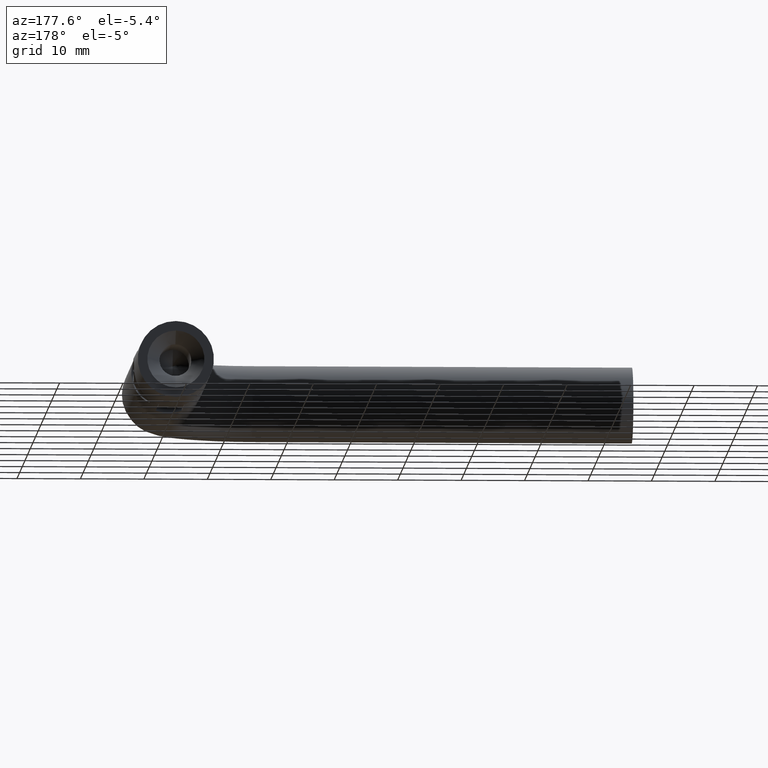
[diagram: clean part render]
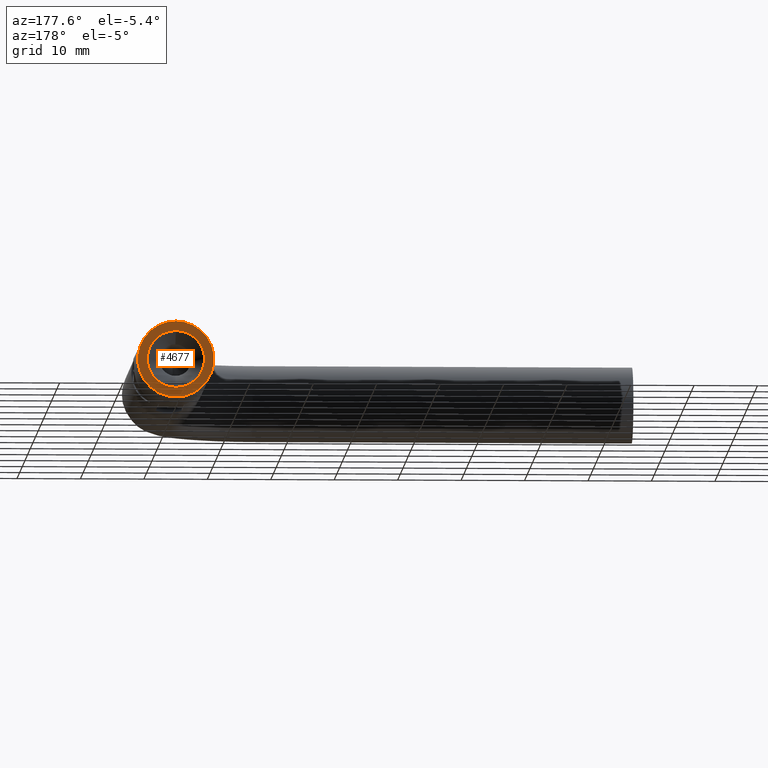
[diagram: same view with one face highlighted and labeled with its STEP entity id]
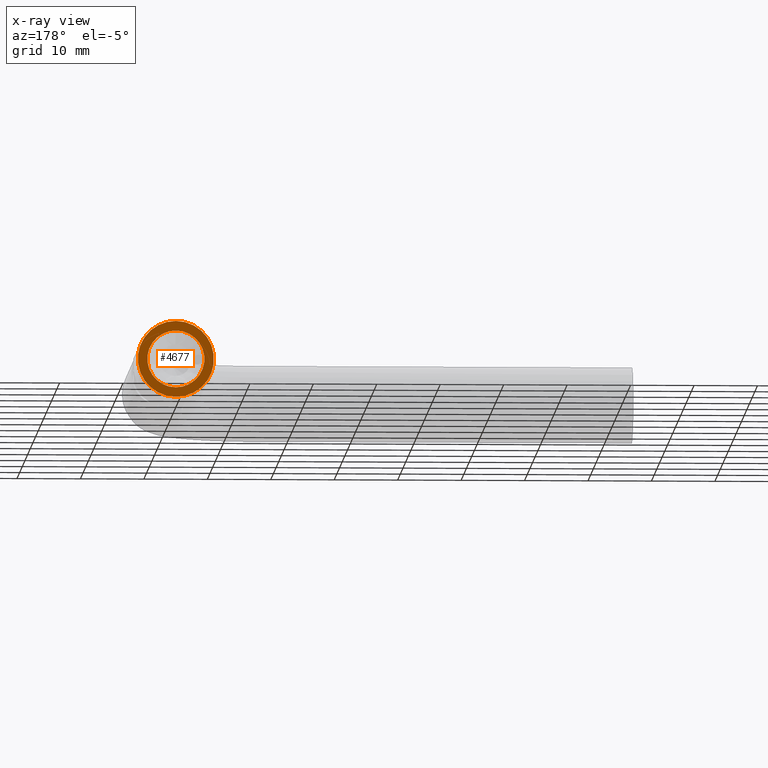
[diagram: x-ray of the same camera — body ghosted, the highlighted face saturated]
A machine part, auxiliary view. The second image highlights one B-rep face of the part: STEP entity #4677.
The next image is the same camera in x-ray: the body ghosted, the highlighted face saturated — about 0% of this face is hidden behind the body in this view.
In plain terms, the highlighted planar face has unit normal (0, 1, 0).
Its self-contained STEP definition (entity closure, byte-faithful):
#646 = DIRECTION ( 'NONE',  ( 0.000000000000000000, 1.000000000000000000, 0.000000000000000000 ) ) ;
#898 = DIRECTION ( 'NONE',  ( -0.000000000000000000, 1.000000000000000000, -0.000000000000000000 ) ) ;
#1510 = EDGE_CURVE ( 'NONE', #6888, #1988, #9349, .T. ) ;
#1697 = DIRECTION ( 'NONE',  ( 0.000000000000000000, -0.000000000000000000, 1.000000000000000000 ) ) ;
#1702 = AXIS2_PLACEMENT_3D ( 'NONE', #10224, #13731, #1697 ) ;
#1732 = AXIS2_PLACEMENT_3D ( 'NONE', #11570, #7991, #1893 ) ;
#1893 = DIRECTION ( 'NONE',  ( 0.000000000000000000, 0.000000000000000000, 1.000000000000000000 ) ) ;
#1988 = VERTEX_POINT ( 'NONE', #14956 ) ;
#2028 = FACE_OUTER_BOUND ( 'NONE', #14743, .T. ) ;
#2718 = VERTEX_POINT ( 'NONE', #4234 ) ;
#3001 = CARTESIAN_POINT ( 'NONE',  ( 0.000000000000000000, 12.86999999999999922, 0.000000000000000000 ) ) ;
#3105 = DIRECTION ( 'NONE',  ( 0.000000000000000000, 0.000000000000000000, 1.000000000000000000 ) ) ;
#3123 = CARTESIAN_POINT ( 'NONE',  ( 0.000000000000000000, 12.86999999999999922, 0.000000000000000000 ) ) ;
#4234 = CARTESIAN_POINT ( 'NONE',  ( 5.510910596163089556E-16, 12.86999999999999922, -4.500000000000000888 ) ) ;
#4266 = DIRECTION ( 'NONE',  ( 0.000000000000000000, 0.000000000000000000, 1.000000000000000000 ) ) ;
#4464 = CARTESIAN_POINT ( 'NONE',  ( 0.000000000000000000, 12.86999999999999922, 0.000000000000000000 ) ) ;
#4677 = ADVANCED_FACE ( 'NONE', ( #6159, #2028 ), #12565, .T. ) ;
#5160 = AXIS2_PLACEMENT_3D ( 'NONE', #3001, #11372, #3105 ) ;
#5522 = CIRCLE ( 'NONE', #14129, 4.500000000000000888 ) ;
#5795 = EDGE_CURVE ( 'NONE', #2718, #14023, #11429, .T. ) ;
#6159 = FACE_BOUND ( 'NONE', #7781, .T. ) ;
#6888 = VERTEX_POINT ( 'NONE', #13544 ) ;
#7138 = CARTESIAN_POINT ( 'NONE',  ( 0.000000000000000000, 12.86999999999999922, 4.500000000000000888 ) ) ;
#7781 = EDGE_LOOP ( 'NONE', ( #11904, #10239 ) ) ;
#7991 = DIRECTION ( 'NONE',  ( 0.000000000000000000, 1.000000000000000000, 0.000000000000000000 ) ) ;
#9349 = CIRCLE ( 'NONE', #14258, 6.000000000000000888 ) ;
#9614 = EDGE_CURVE ( 'NONE', #1988, #6888, #12561, .T. ) ;
#10224 = CARTESIAN_POINT ( 'NONE',  ( 0.000000000000000000, 12.86999999999999922, 0.000000000000000000 ) ) ;
#10239 = ORIENTED_EDGE ( 'NONE', *, *, #5795, .F. ) ;
#10601 = DIRECTION ( 'NONE',  ( 0.000000000000000000, 0.000000000000000000, 1.000000000000000000 ) ) ;
#11372 = DIRECTION ( 'NONE',  ( -0.000000000000000000, 1.000000000000000000, -0.000000000000000000 ) ) ;
#11429 = CIRCLE ( 'NONE', #5160, 4.500000000000000888 ) ;
#11570 = CARTESIAN_POINT ( 'NONE',  ( 0.000000000000000000, 12.86999999999999922, 0.000000000000000000 ) ) ;
#11904 = ORIENTED_EDGE ( 'NONE', *, *, #12491, .F. ) ;
#12491 = EDGE_CURVE ( 'NONE', #14023, #2718, #5522, .T. ) ;
#12561 = CIRCLE ( 'NONE', #1732, 6.000000000000000888 ) ;
#12565 = PLANE ( 'NONE',  #1702 ) ;
#12574 = ORIENTED_EDGE ( 'NONE', *, *, #9614, .T. ) ;
#13544 = CARTESIAN_POINT ( 'NONE',  ( 7.347880794884120722E-16, 12.86999999999999922, 6.000000000000000888 ) ) ;
#13731 = DIRECTION ( 'NONE',  ( 0.000000000000000000, 1.000000000000000000, 0.000000000000000000 ) ) ;
#14023 = VERTEX_POINT ( 'NONE', #7138 ) ;
#14129 = AXIS2_PLACEMENT_3D ( 'NONE', #4464, #898, #10601 ) ;
#14258 = AXIS2_PLACEMENT_3D ( 'NONE', #3123, #646, #4266 ) ;
#14273 = ORIENTED_EDGE ( 'NONE', *, *, #1510, .T. ) ;
#14743 = EDGE_LOOP ( 'NONE', ( #12574, #14273 ) ) ;
#14956 = CARTESIAN_POINT ( 'NONE',  ( 0.000000000000000000, 12.86999999999999922, -6.000000000000000888 ) ) ;